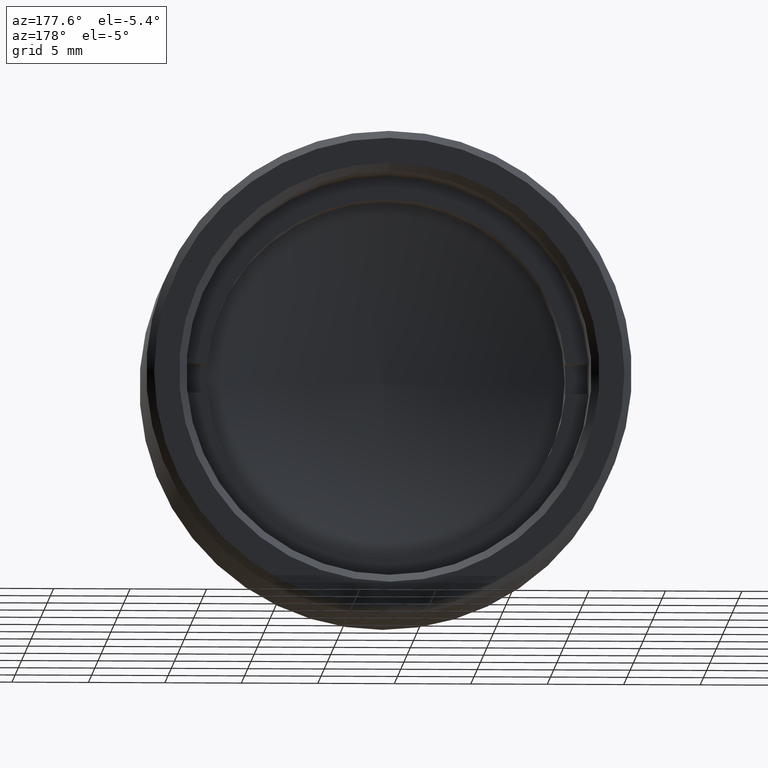
[diagram: clean part render]
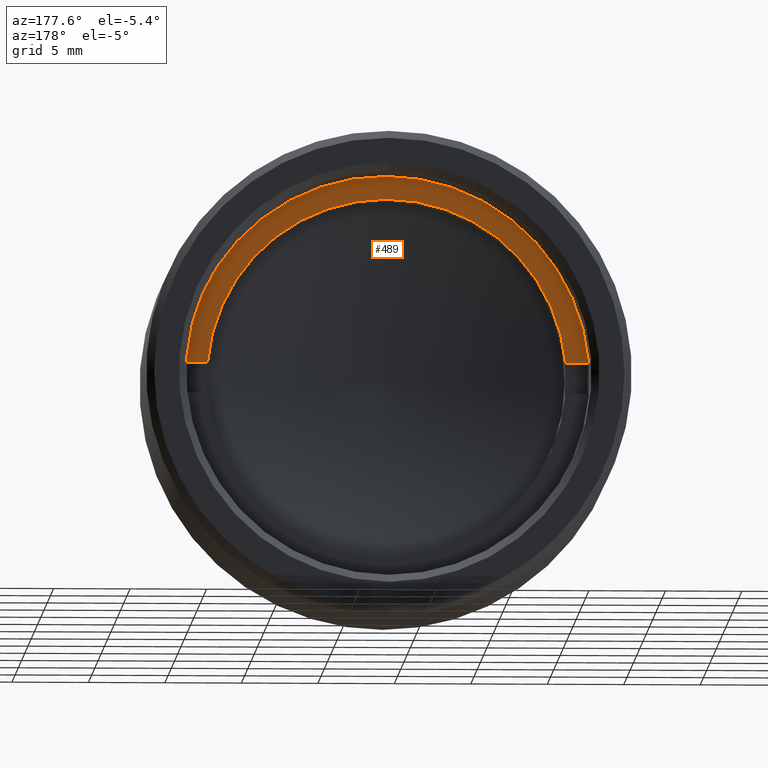
[diagram: same view with one face highlighted and labeled with its STEP entity id]
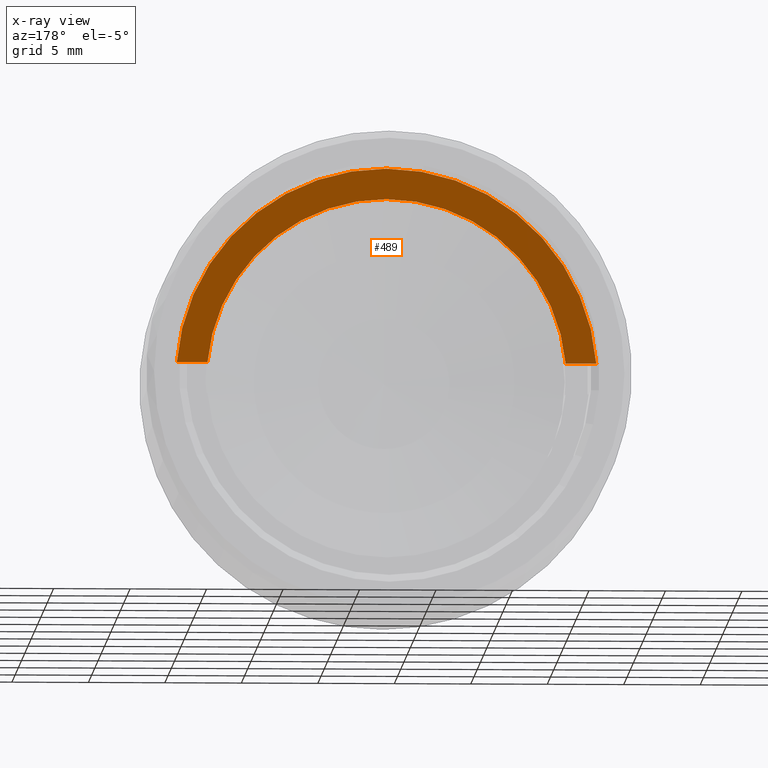
[diagram: x-ray of the same camera — body ghosted, the highlighted face saturated]
A machine part, auxiliary view. The second image highlights one B-rep face of the part: STEP entity #489.
The next image is the same camera in x-ray: the body ghosted, the highlighted face saturated — about 0% of this face is hidden behind the body in this view.
In plain terms, the highlighted planar face has unit normal (0, -1, 0).
Its self-contained STEP definition (entity closure, byte-faithful):
#25 = EDGE_CURVE ( 'NONE', #1426, #75, #562, .T. ) ;
#29 = CARTESIAN_POINT ( 'NONE',  ( -49.25497044199664032, 16.36229803992439003, 20.92647029529263492 ) ) ;
#62 = VERTEX_POINT ( 'NONE', #242 ) ;
#71 = DIRECTION ( 'NONE',  ( 0.000000000000000000, 1.000000000000000000, 0.000000000000000000 ) ) ;
#75 = VERTEX_POINT ( 'NONE', #29 ) ;
#99 = ORIENTED_EDGE ( 'NONE', *, *, #636, .T. ) ;
#131 = EDGE_CURVE ( 'NONE', #62, #922, #235, .T. ) ;
#134 = CIRCLE ( 'NONE', #1158, 11.75000000000000000 ) ;
#135 = AXIS2_PLACEMENT_3D ( 'NONE', #742, #1201, #1234 ) ;
#137 = AXIS2_PLACEMENT_3D ( 'NONE', #295, #71, #333 ) ;
#140 = DIRECTION ( 'NONE',  ( 1.000000000000000000, 0.000000000000000000, 0.000000000000000000 ) ) ;
#145 = VERTEX_POINT ( 'NONE', #1272 ) ;
#165 = PLANE ( 'NONE',  #228 ) ;
#228 = AXIS2_PLACEMENT_3D ( 'NONE', #748, #1482, #412 ) ;
#235 = LINE ( 'NONE', #373, #889 ) ;
#242 = CARTESIAN_POINT ( 'NONE',  ( -76.68214674580160306, 16.36229803992439003, 20.92647029529263492 ) ) ;
#252 = EDGE_CURVE ( 'NONE', #145, #75, #1230, .T. ) ;
#253 = DIRECTION ( 'NONE',  ( 0.000000000000000000, 0.000000000000000000, 1.000000000000000000 ) ) ;
#295 = CARTESIAN_POINT ( 'NONE',  ( -62.96855859389910393, 16.36229803992438647, 19.92647029529263492 ) ) ;
#333 = DIRECTION ( 'NONE',  ( 0.000000000000000000, 0.000000000000000000, 1.000000000000000000 ) ) ;
#373 = CARTESIAN_POINT ( 'NONE',  ( -89.82109886651370800, 16.36229803992439003, 20.92647029529263492 ) ) ;
#412 = DIRECTION ( 'NONE',  ( 0.000000000000000000, 0.000000000000000000, -1.000000000000000000 ) ) ;
#444 = CARTESIAN_POINT ( 'NONE',  ( -51.26118911993101079, 16.36229803992438647, 20.92647029529263492 ) ) ;
#447 = ORIENTED_EDGE ( 'NONE', *, *, #131, .F. ) ;
#489 = ADVANCED_FACE ( 'NONE', ( #1218 ), #165, .F. ) ;
#533 = CIRCLE ( 'NONE', #1189, 11.75000000000000000 ) ;
#562 = LINE ( 'NONE', #570, #1037 ) ;
#570 = CARTESIAN_POINT ( 'NONE',  ( -89.82109886651370800, 16.36229803992439003, 20.92647029529263492 ) ) ;
#630 = EDGE_CURVE ( 'NONE', #1428, #1426, #533, .T. ) ;
#636 = EDGE_CURVE ( 'NONE', #62, #145, #770, .T. ) ;
#742 = CARTESIAN_POINT ( 'NONE',  ( -62.96855859389910393, 16.36229803992438647, 19.92647029529263492 ) ) ;
#748 = CARTESIAN_POINT ( 'NONE',  ( -51.21855859389911103, 16.36229803992439003, 19.92647029529263492 ) ) ;
#752 = ORIENTED_EDGE ( 'NONE', *, *, #25, .F. ) ;
#754 = DIRECTION ( 'NONE',  ( 0.000000000000000000, 1.000000000000000000, 0.000000000000000000 ) ) ;
#770 = CIRCLE ( 'NONE', #137, 13.75000000000000178 ) ;
#881 = DIRECTION ( 'NONE',  ( 0.000000000000000000, 0.000000000000000000, 1.000000000000000000 ) ) ;
#883 = ORIENTED_EDGE ( 'NONE', *, *, #906, .F. ) ;
#889 = VECTOR ( 'NONE', #140, 1000.000000000000000 ) ;
#906 = EDGE_CURVE ( 'NONE', #922, #1428, #134, .T. ) ;
#922 = VERTEX_POINT ( 'NONE', #997 ) ;
#962 = ORIENTED_EDGE ( 'NONE', *, *, #630, .F. ) ;
#997 = CARTESIAN_POINT ( 'NONE',  ( -74.67592806786720416, 16.36229803992438647, 20.92647029529263492 ) ) ;
#1027 = EDGE_LOOP ( 'NONE', ( #99, #1176, #752, #962, #883, #447 ) ) ;
#1037 = VECTOR ( 'NONE', #1389, 1000.000000000000000 ) ;
#1119 = CARTESIAN_POINT ( 'NONE',  ( -62.96855859389910393, 16.36229803992438647, 19.92647029529263492 ) ) ;
#1158 = AXIS2_PLACEMENT_3D ( 'NONE', #1439, #1308, #253 ) ;
#1176 = ORIENTED_EDGE ( 'NONE', *, *, #252, .T. ) ;
#1189 = AXIS2_PLACEMENT_3D ( 'NONE', #1119, #754, #881 ) ;
#1201 = DIRECTION ( 'NONE',  ( 0.000000000000000000, 1.000000000000000000, 0.000000000000000000 ) ) ;
#1218 = FACE_OUTER_BOUND ( 'NONE', #1027, .T. ) ;
#1230 = CIRCLE ( 'NONE', #135, 13.75000000000000178 ) ;
#1234 = DIRECTION ( 'NONE',  ( 0.000000000000000000, 0.000000000000000000, 1.000000000000000000 ) ) ;
#1272 = CARTESIAN_POINT ( 'NONE',  ( -62.96855859389910393, 16.36229803992438647, 33.67647029529263847 ) ) ;
#1308 = DIRECTION ( 'NONE',  ( 0.000000000000000000, 1.000000000000000000, 0.000000000000000000 ) ) ;
#1346 = CARTESIAN_POINT ( 'NONE',  ( -62.96855859389910393, 16.36229803992438647, 31.67647029529263492 ) ) ;
#1389 = DIRECTION ( 'NONE',  ( 1.000000000000000000, 0.000000000000000000, 0.000000000000000000 ) ) ;
#1426 = VERTEX_POINT ( 'NONE', #444 ) ;
#1428 = VERTEX_POINT ( 'NONE', #1346 ) ;
#1439 = CARTESIAN_POINT ( 'NONE',  ( -62.96855859389910393, 16.36229803992438647, 19.92647029529263492 ) ) ;
#1482 = DIRECTION ( 'NONE',  ( 0.000000000000000000, -1.000000000000000000, 0.000000000000000000 ) ) ;